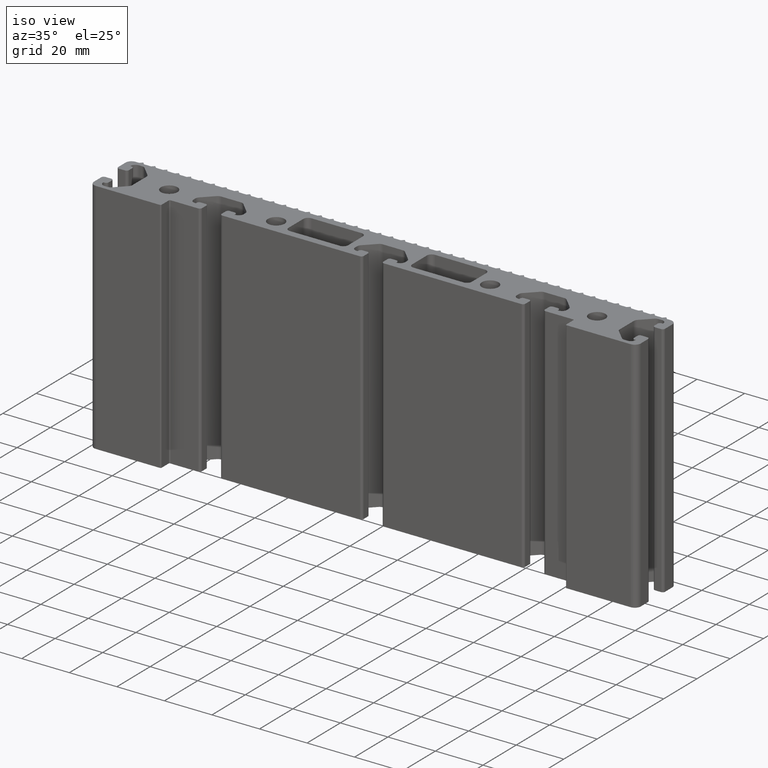
[diagram: clean part render]
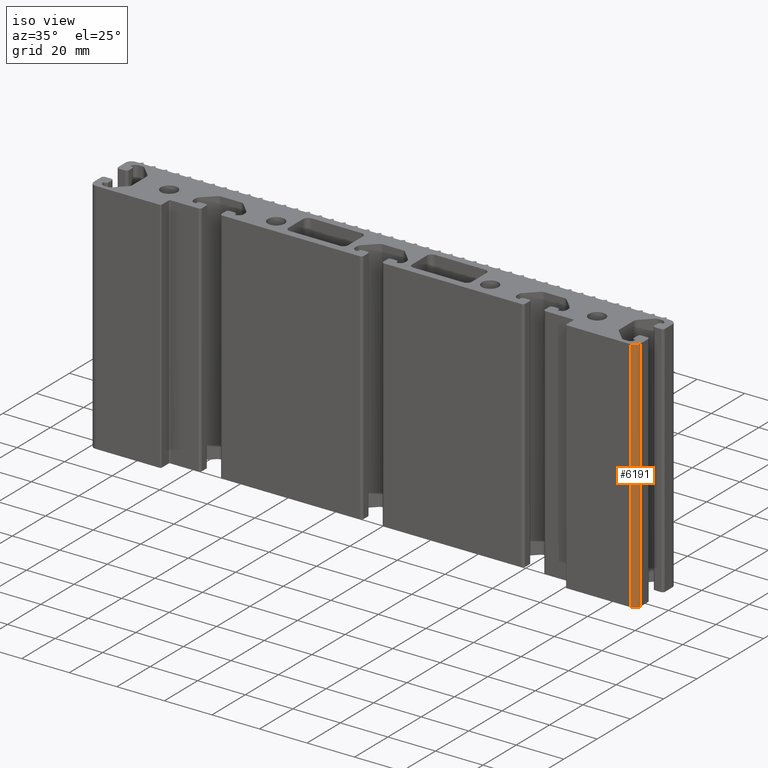
[diagram: same view with one face highlighted and labeled with its STEP entity id]
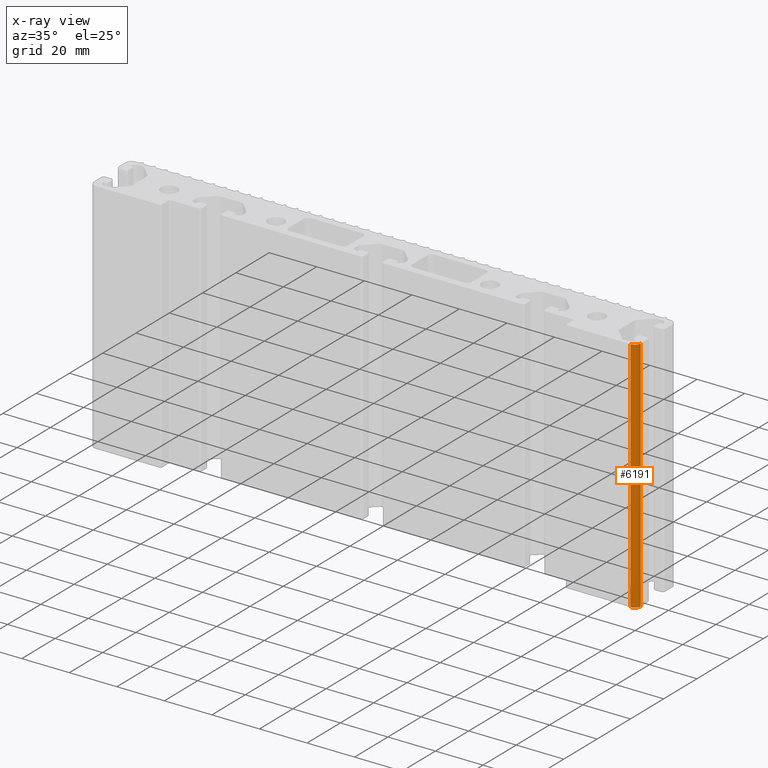
[diagram: x-ray of the same camera — body ghosted, the highlighted face saturated]
A machine part, iso view. The second image highlights one B-rep face of the part: STEP entity #6191.
The next image is the same camera in x-ray: the body ghosted, the highlighted face saturated — about 0% of this face is hidden behind the body in this view.
In plain terms, the highlighted cylindrical surface (edge-blend (fillet) strip) has radius 2.5 mm, axis along (0, 0, 1).
Its self-contained STEP definition (entity closure, byte-faithful):
#552=FACE_OUTER_BOUND('',#859,.T.);
#859=EDGE_LOOP('',(#5199,#5200,#5201,#5202));
#1610=LINE('',#10115,#2349);
#1611=LINE('',#10121,#2350);
#2349=VECTOR('',#8305,100.);
#2350=VECTOR('',#8312,100.);
#2510=CIRCLE('',#6653,2.5);
#2511=CIRCLE('',#6654,2.5);
#3110=VERTEX_POINT('',#10111);
#3111=VERTEX_POINT('',#10113);
#3112=VERTEX_POINT('',#10117);
#3113=VERTEX_POINT('',#10119);
#4006=EDGE_CURVE('',#3110,#3111,#1610,.T.);
#4007=EDGE_CURVE('',#3110,#3112,#2510,.T.);
#4008=EDGE_CURVE('',#3113,#3111,#2511,.T.);
#4009=EDGE_CURVE('',#3112,#3113,#1611,.T.);
#5199=ORIENTED_EDGE('',*,*,#4007,.F.);
#5200=ORIENTED_EDGE('',*,*,#4006,.T.);
#5201=ORIENTED_EDGE('',*,*,#4008,.F.);
#5202=ORIENTED_EDGE('',*,*,#4009,.F.);
#5891=CYLINDRICAL_SURFACE('',#6652,2.5);
#6191=ADVANCED_FACE('',(#552),#5891,.T.);
#6652=AXIS2_PLACEMENT_3D('',#10116,#8306,#8307);
#6653=AXIS2_PLACEMENT_3D('',#10118,#8308,#8309);
#6654=AXIS2_PLACEMENT_3D('',#10120,#8310,#8311);
#8305=DIRECTION('',(0.,0.,1.));
#8306=DIRECTION('center_axis',(0.,0.,1.));
#8307=DIRECTION('ref_axis',(0.,1.,0.));
#8308=DIRECTION('center_axis',(0.,0.,-1.));
#8309=DIRECTION('ref_axis',(0.,1.,0.));
#8310=DIRECTION('center_axis',(0.,0.,1.));
#8311=DIRECTION('ref_axis',(0.,1.,0.));
#8312=DIRECTION('',(0.,0.,1.));
#10111=CARTESIAN_POINT('',(115.,-9.5,0.));
#10113=CARTESIAN_POINT('',(115.,-9.5,100.));
#10115=CARTESIAN_POINT('',(115.,-9.5,0.));
#10116=CARTESIAN_POINT('Origin',(112.5,-9.5,0.));
#10117=CARTESIAN_POINT('',(112.5,-12.,0.));
#10118=CARTESIAN_POINT('Origin',(112.5,-9.5,0.));
#10119=CARTESIAN_POINT('',(112.5,-12.,100.));
#10120=CARTESIAN_POINT('Origin',(112.5,-9.5,100.));
#10121=CARTESIAN_POINT('',(112.5,-12.,0.));